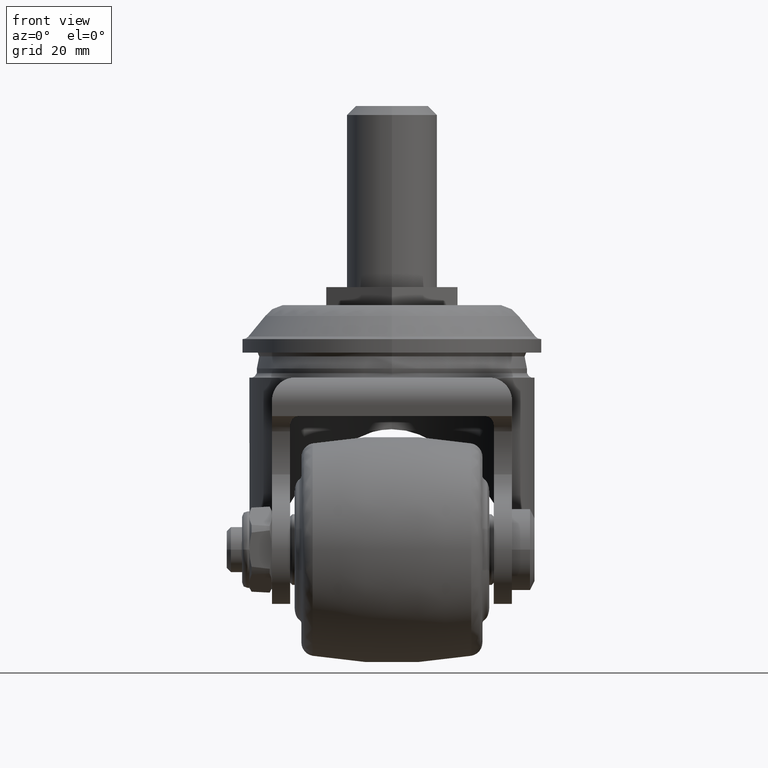
[diagram: clean part render]
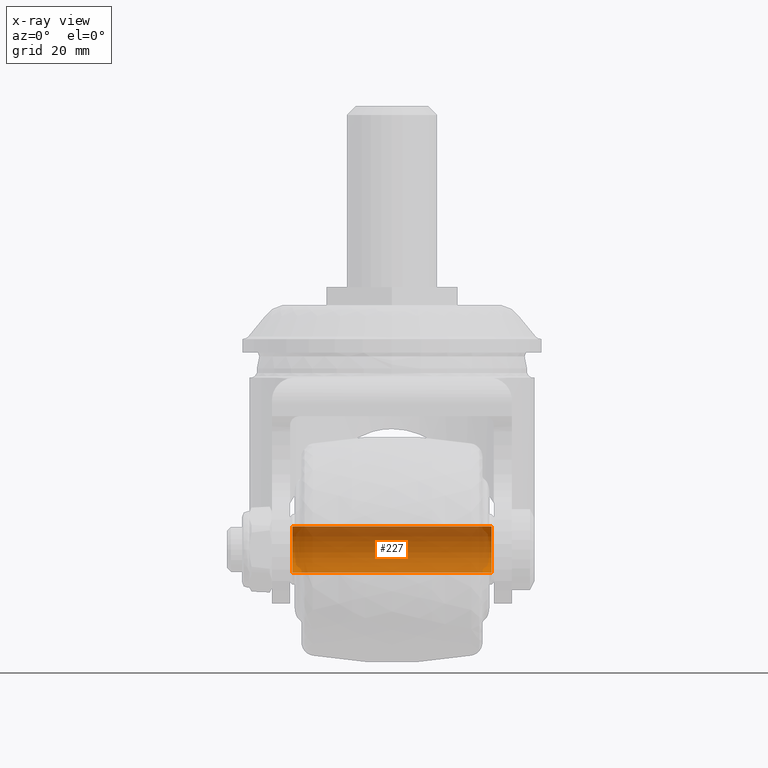
[diagram: x-ray — body ghosted, one internal face saturated and labeled with its STEP entity id]
A machine part, front view, then the same camera in x-ray: the body is ghosted and one INTERNAL B-rep face — a face not visible from any outside direction — is saturated and labeled: STEP entity #227.
In plain terms, the highlighted cylindrical surface (edge-blend (fillet) strip) has radius 5.1 mm, axis along (-1, -0, -0).
Its self-contained STEP definition (entity closure, byte-faithful):
#227=ADVANCED_FACE('',(#1450),#1449,.F.);
#1449=CYLINDRICAL_SURFACE('',#2899,5.10000000000E+00);
#1450=FACE_OUTER_BOUND('',#2900,.T.);
#2896=CARTESIAN_POINT('',(5.00000000000E+01,0.00000000000E+00,0.00000000000E+00));
#2897=DIRECTION('',(-1.00000000000E+00,-0.00000000000E+00,-0.00000000000E+00));
#2898=DIRECTION('',(-0.00000000000E+00,-0.00000000000E+00,1.00000000000E+00));
#2899=AXIS2_PLACEMENT_3D('',#2896,#2897,#2898);
#2900=EDGE_LOOP('',(#4188,#4189,#4190,#4191));
#4188=ORIENTED_EDGE('',*,*,#4683,.T.);
#4189=ORIENTED_EDGE('',*,*,#4684,.T.);
#4190=ORIENTED_EDGE('',*,*,#4682,.F.);
#4191=ORIENTED_EDGE('',*,*,#4685,.F.);
#4682=EDGE_CURVE('',#6656,#6655,#6675,.T.);
#4683=EDGE_CURVE('',#6681,#6682,#6683,.T.);
#4684=EDGE_CURVE('',#6682,#6655,#6689,.T.);
#4685=EDGE_CURVE('',#6681,#6656,#6695,.T.);
#6655=VERTEX_POINT('',#8781);
#6656=VERTEX_POINT('',#8782);
#6675=CIRCLE('',#8794,5.10000000000E+00);
#6681=VERTEX_POINT('',#8795);
#6682=VERTEX_POINT('',#8796);
#6683=CIRCLE('',#8800,5.10000000000E+00);
#6689=(BOUNDED_CURVE() B_SPLINE_CURVE(1,(#8801,#8802),.UNSPECIFIED.,.F.,.F.) B_SPLINE_CURVE_WITH_KNOTS((2,2),(8.33333335810E-02,9.16666666255E-01),.UNSPECIFIED.) CURVE() GEOMETRIC_REPRESENTATION_ITEM() RATIONAL_B_SPLINE_CURVE((1.00000000000E+00,1.00000000000E+00)) REPRESENTATION_ITEM('') );
#6695=(BOUNDED_CURVE() B_SPLINE_CURVE(1,(#8803,#8804),.UNSPECIFIED.,.F.,.F.) B_SPLINE_CURVE_WITH_KNOTS((2,2),(8.33333333333E-02,9.16666666667E-01),.UNSPECIFIED.) CURVE() GEOMETRIC_REPRESENTATION_ITEM() RATIONAL_B_SPLINE_CURVE((7.50000000000E-01,7.50000000000E-01)) REPRESENTATION_ITEM('') );
#8781=CARTESIAN_POINT('',(-2.20000000000E+01,2.96059473233E-16,5.10000000000E+00));
#8782=CARTESIAN_POINT('',(-2.20000000000E+01,0.00000000000E+00,-5.10000000000E+00));
#8791=CARTESIAN_POINT('',(-2.20000000000E+01,0.00000000000E+00,0.00000000000E+00));
#8792=DIRECTION('',(1.00000000000E+00,0.00000000000E+00,0.00000000000E+00));
#8793=DIRECTION('',(0.00000000000E+00,-1.22460635382E-16,-1.00000000000E+00));
#8794=AXIS2_PLACEMENT_3D('',#8791,#8792,#8793);
#8795=CARTESIAN_POINT('',(2.20000000000E+01,0.00000000000E+00,-5.10000000000E+00));
#8796=CARTESIAN_POINT('',(2.20000000000E+01,2.96059473233E-16,5.10000000000E+00));
#8797=CARTESIAN_POINT('',(2.20000000000E+01,0.00000000000E+00,0.00000000000E+00));
#8798=DIRECTION('',(1.00000000000E+00,0.00000000000E+00,0.00000000000E+00));
#8799=DIRECTION('',(0.00000000000E+00,-1.22460635382E-16,-1.00000000000E+00));
#8800=AXIS2_PLACEMENT_3D('',#8797,#8798,#8799);
#8801=CARTESIAN_POINT('',(2.19999999869E+01,0.00000000000E+00,5.10000000000E+00));
#8802=CARTESIAN_POINT('',(-2.19999999783E+01,0.00000000000E+00,5.10000000000E+00));
#8803=CARTESIAN_POINT('',(2.20000000000E+01,-2.96059473233E-16,-5.10000000000E+00));
#8804=CARTESIAN_POINT('',(-2.20000000000E+01,-2.96059473233E-16,-5.10000000000E+00));